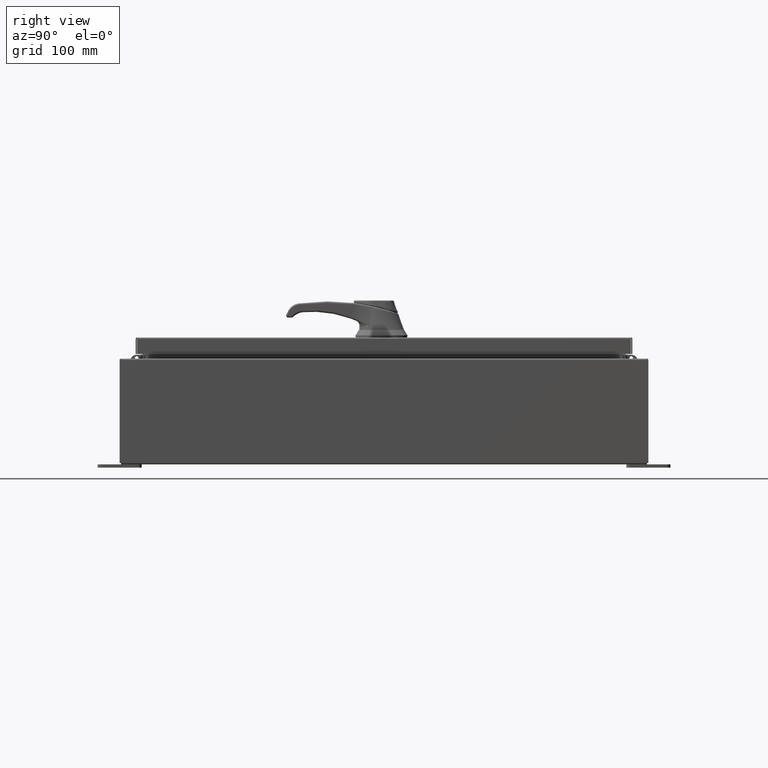
[diagram: clean part render]
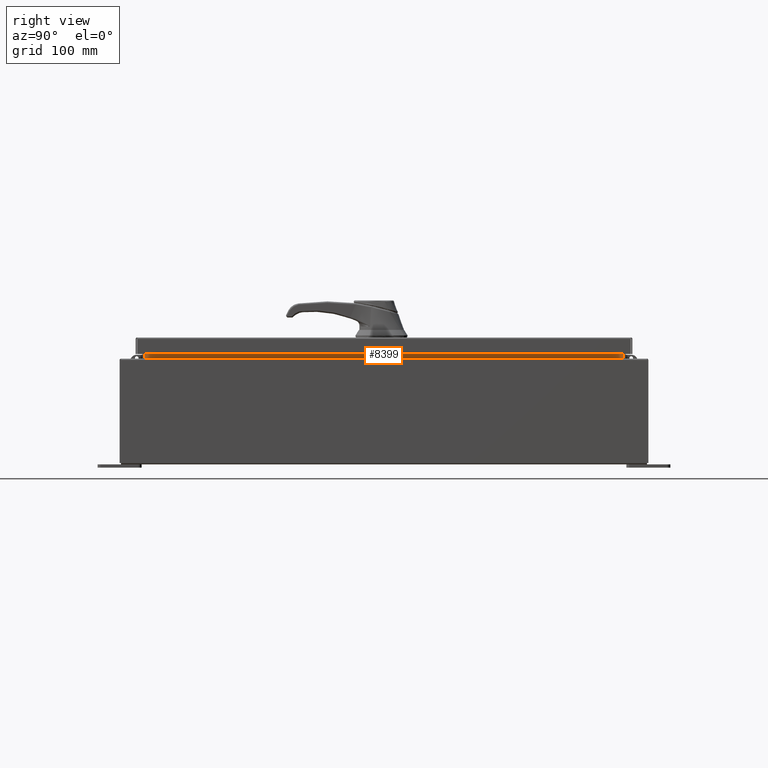
[diagram: same view with one face highlighted and labeled with its STEP entity id]
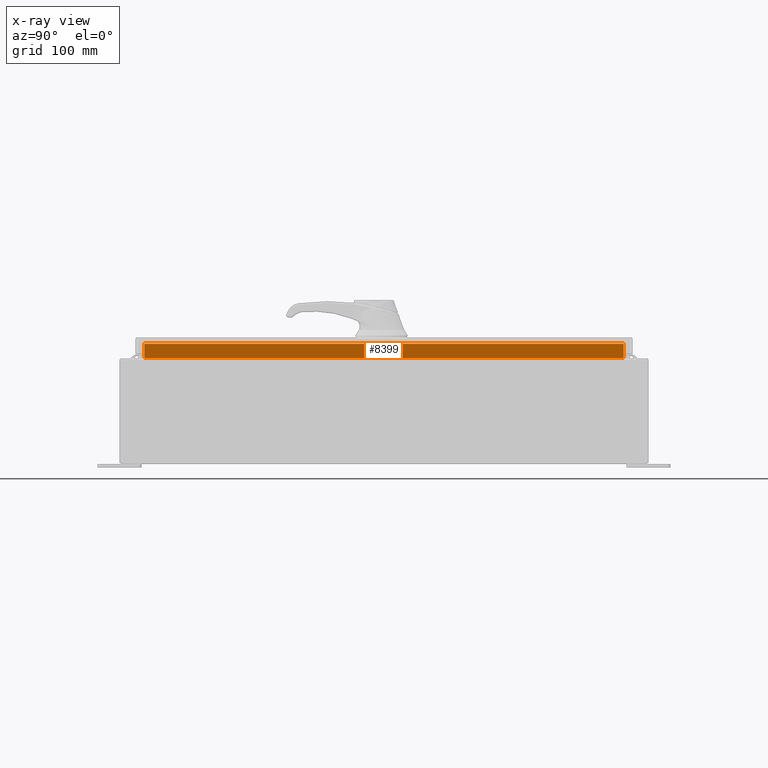
[diagram: x-ray of the same camera — body ghosted, the highlighted face saturated]
A machine part, right view. The second image highlights one B-rep face of the part: STEP entity #8399.
The next image is the same camera in x-ray: the body ghosted, the highlighted face saturated — about 0% of this face is hidden behind the body in this view.
In plain terms, the highlighted planar face has unit normal (1, 0, -0).
Its self-contained STEP definition (entity closure, byte-faithful):
#2349 = LINE ( 'NONE', #62750, #48255 ) ;
#3647 = CARTESIAN_POINT ( 'NONE',  ( 10.69970000000002100, -13.59375000000000200, 6.762900000000009900 ) ) ;
#5345 = CARTESIAN_POINT ( 'NONE',  ( 10.69970000000001800, -13.59375000000000400, 5.938300000000012300 ) ) ;
#8399 = ADVANCED_FACE ( 'NONE', ( #23775 ), #38285, .T. ) ;
#8666 = DIRECTION ( 'NONE',  ( -4.723826639860392000E-015, -0.0000000000000000000, -1.000000000000000000 ) ) ;
#9792 = VERTEX_POINT ( 'NONE', #5345 ) ;
#15654 = ORIENTED_EDGE ( 'NONE', *, *, #72593, .F. ) ;
#16086 = LINE ( 'NONE', #42702, #83516 ) ;
#20180 = LINE ( 'NONE', #20663, #117503 ) ;
#20663 = CARTESIAN_POINT ( 'NONE',  ( 10.69970000000002100, -13.59375000000000200, 6.762900000000009900 ) ) ;
#23775 = FACE_OUTER_BOUND ( 'NONE', #89960, .T. ) ;
#30427 = CARTESIAN_POINT ( 'NONE',  ( 10.69970000000002100, 13.59375000000000200, 6.762900000000009900 ) ) ;
#38285 = PLANE ( 'NONE',  #61962 ) ;
#41149 = CARTESIAN_POINT ( 'NONE',  ( 10.69970000000002100, -13.59375000000000200, 6.850600000000010700 ) ) ;
#42702 = CARTESIAN_POINT ( 'NONE',  ( 10.69970000000001400, 13.59375000000000200, 5.938300000000010600 ) ) ;
#43416 = VERTEX_POINT ( 'NONE', #30427 ) ;
#45282 = ORIENTED_EDGE ( 'NONE', *, *, #71366, .F. ) ;
#48255 = VECTOR ( 'NONE', #8666, 39.37007874015748100 ) ;
#50638 = CARTESIAN_POINT ( 'NONE',  ( 10.69969999999998900, 0.0000000000000000000, -5.054352789851418100E-014 ) ) ;
#50814 = CARTESIAN_POINT ( 'NONE',  ( 10.69970000000001800, 13.59375000000000400, 5.938300000000012300 ) ) ;
#56289 = VERTEX_POINT ( 'NONE', #50814 ) ;
#61962 = AXIS2_PLACEMENT_3D ( 'NONE', #50638, #96748, #110131 ) ;
#62750 = CARTESIAN_POINT ( 'NONE',  ( 10.69970000000001800, 13.59375000000000200, 5.925300000000009800 ) ) ;
#63538 = LINE ( 'NONE', #41149, #66450 ) ;
#66274 = DIRECTION ( 'NONE',  ( 4.723826639860403100E-015, -0.0000000000000000000, 1.000000000000000000 ) ) ;
#66450 = VECTOR ( 'NONE', #66274, 39.37007874015748100 ) ;
#71366 = EDGE_CURVE ( 'NONE', #9792, #84220, #63538, .T. ) ;
#72593 = EDGE_CURVE ( 'NONE', #56289, #9792, #16086, .T. ) ;
#77368 = ORIENTED_EDGE ( 'NONE', *, *, #102999, .F. ) ;
#78843 = ORIENTED_EDGE ( 'NONE', *, *, #80387, .F. ) ;
#80387 = EDGE_CURVE ( 'NONE', #43416, #56289, #2349, .T. ) ;
#83516 = VECTOR ( 'NONE', #97470, 39.37007874015748100 ) ;
#84220 = VERTEX_POINT ( 'NONE', #3647 ) ;
#84815 = DIRECTION ( 'NONE',  ( 0.0000000000000000000, 1.000000000000000000, 0.0000000000000000000 ) ) ;
#89960 = EDGE_LOOP ( 'NONE', ( #78843, #77368, #45282, #15654 ) ) ;
#96748 = DIRECTION ( 'NONE',  ( 1.000000000000000000, 0.0000000000000000000, -4.723826639860392000E-015 ) ) ;
#97470 = DIRECTION ( 'NONE',  ( 1.607708244547244000E-016, -1.000000000000000000, 1.607708244547244000E-016 ) ) ;
#102999 = EDGE_CURVE ( 'NONE', #84220, #43416, #20180, .T. ) ;
#110131 = DIRECTION ( 'NONE',  ( -4.723826639860392000E-015, 0.0000000000000000000, -1.000000000000000000 ) ) ;
#117503 = VECTOR ( 'NONE', #84815, 39.37007874015748100 ) ;